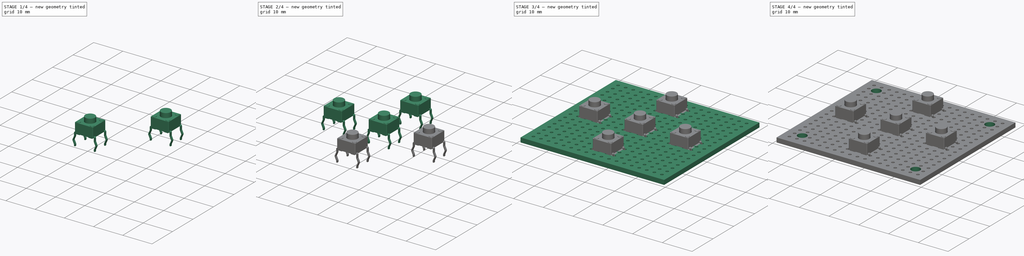
[diagram: build sequence overview — one tinted view per stage of 4, left to right]
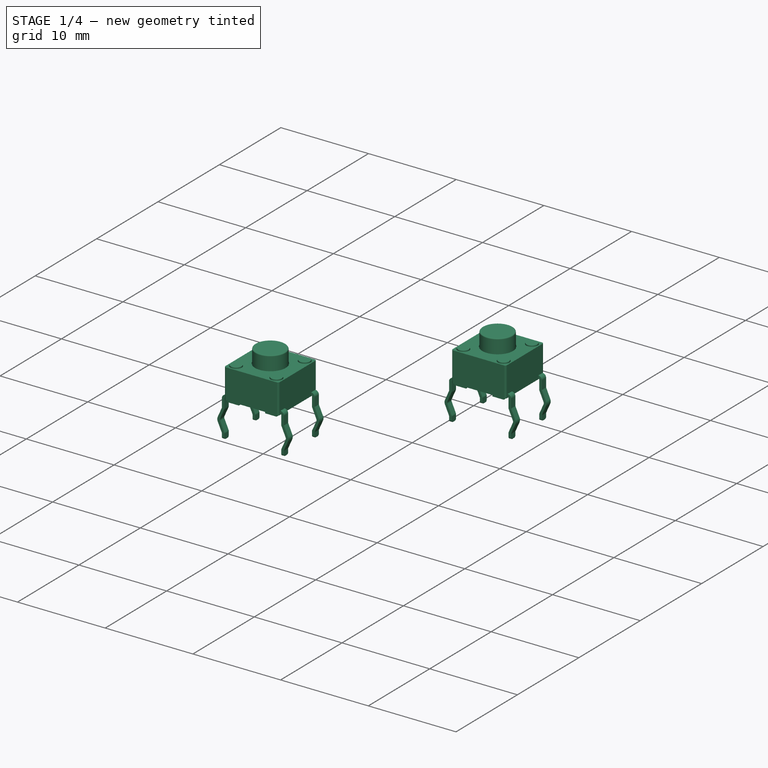
[diagram: stage 1 of 4 — iso view after this stage's code; geometry added in this stage tinted green]
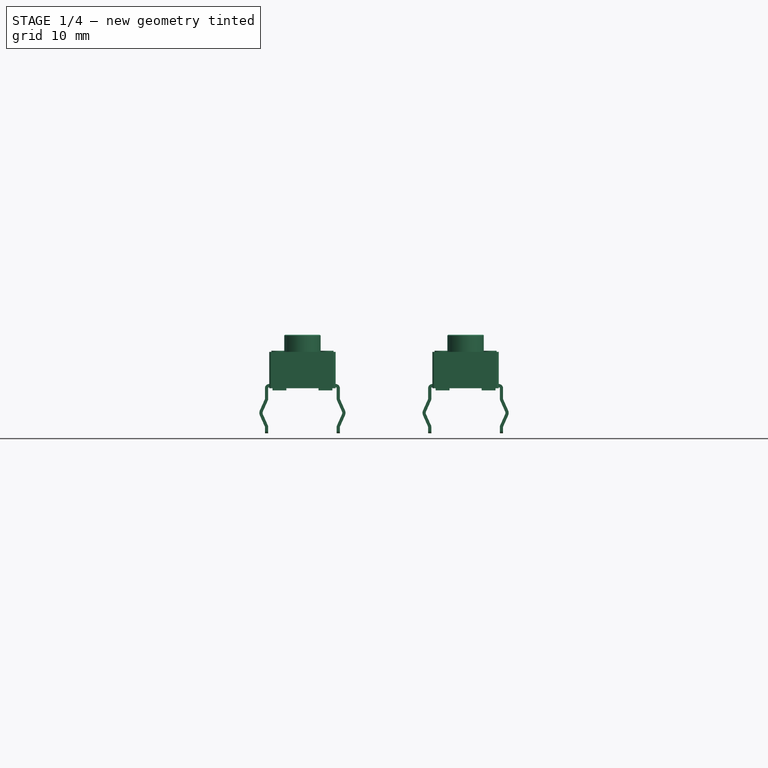
[diagram: stage 1 of 4 — front view after this stage's code; geometry added in this stage tinted green]
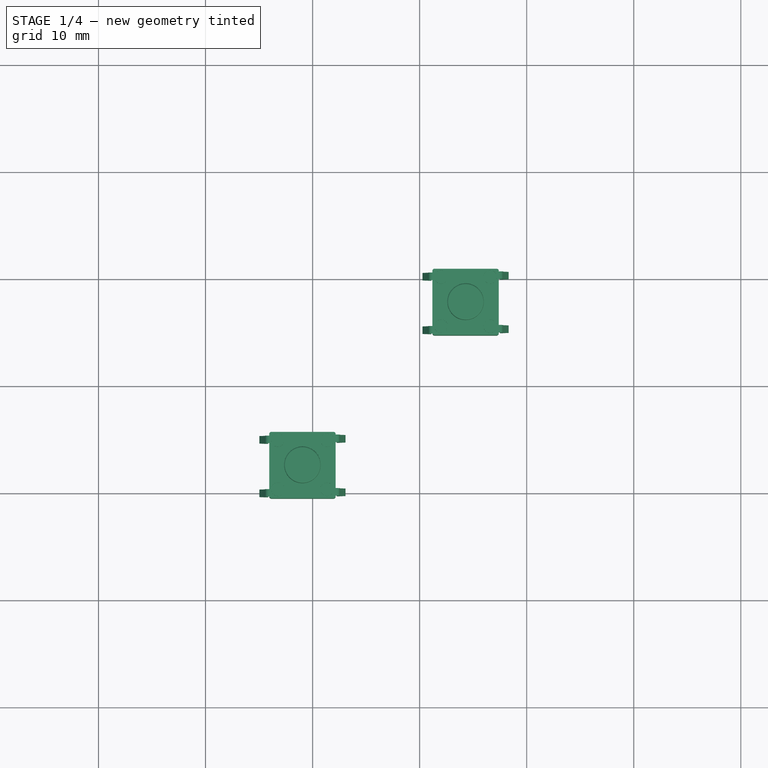
[diagram: stage 1 of 4 — top view after this stage's code; geometry added in this stage tinted green]
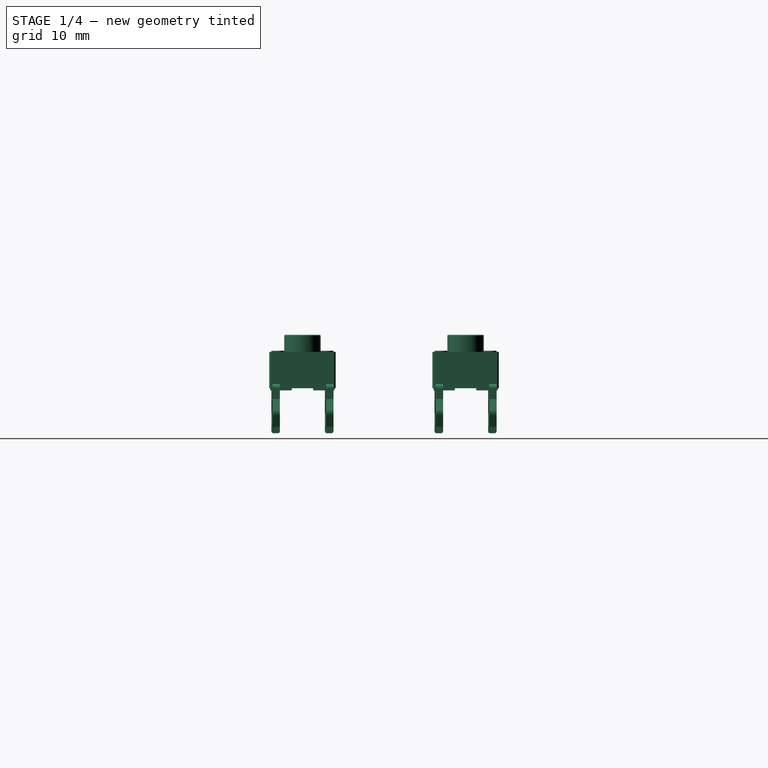
[diagram: stage 1 of 4 — right view after this stage's code; geometry added in this stage tinted green]
FCSTD DOCUMENT  (FreeCAD 0.14R3692 (Git))
Label: keypad
License: The MIT License
LicenseURL: http://opensource.org/licenses/MIT
objects: Part::Feature×14, Part::Compound×5, Sketcher::SketchObject×3, PartDesign::Pocket×2, PartDesign::LinearPattern×2, App::DocumentObjectGroup×2, PartDesign::Pad×1, PartDesign::MultiTransform×1, Part::FeaturePython×1
note: 32 computed .brp shape members not serialized (recipe doc carries the construction recipe); baked Part::Feature solids carry a one-line shape summary decoded from their .brp

FEATURE [Part::Compound] Compound003  label="pushbutton-mini-004"
  Links = -> [Part__Feature001,Part__Feature002,Part__Feature003,Part__Feature005,Part__Feature004,Part__Feature006]
  Placement = pos=(19.05,2.54,1.7) rot=(0,0,1;0rad)
FEATURE [Part::Compound] Compound004  label="pushbutton-mini-005"
  Links = -> [Part__Feature001,Part__Feature002,Part__Feature003,Part__Feature005,Part__Feature004,Part__Feature006]
  Placement = pos=(34.29,17.78,1.7) rot=(0,0,1;0rad)
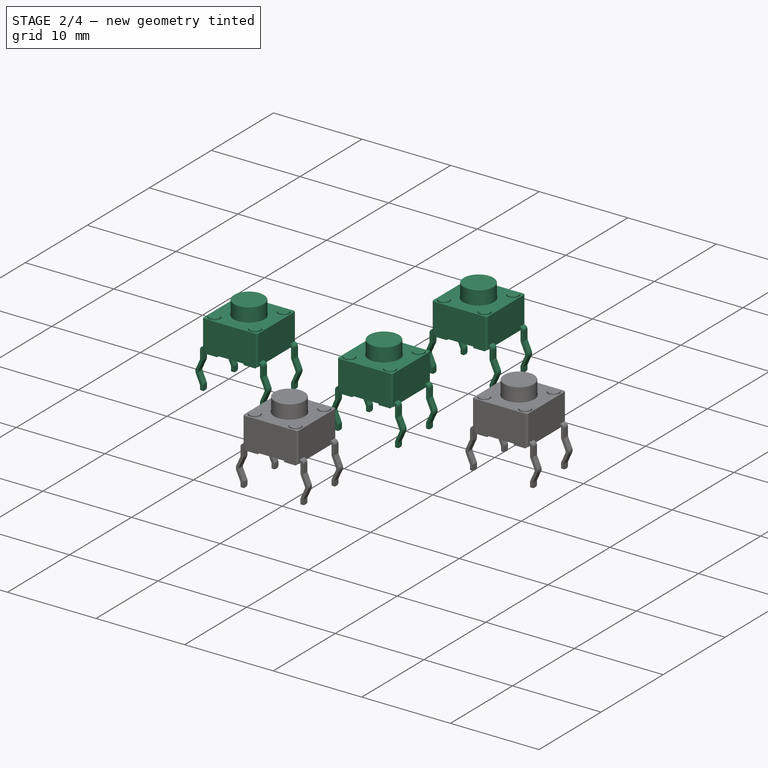
[diagram: stage 2 of 4 — iso view after this stage's code; geometry added in this stage tinted green]
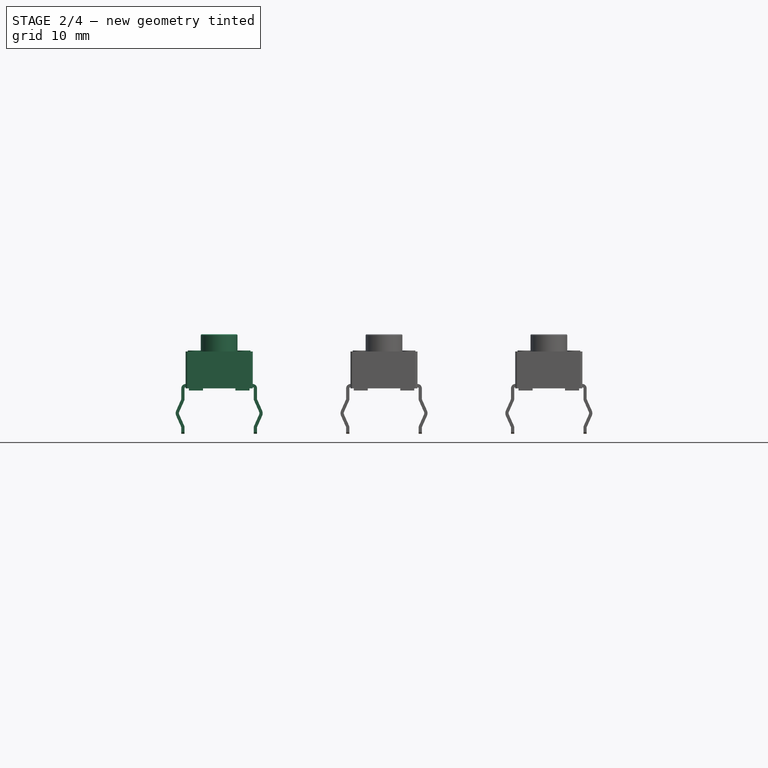
[diagram: stage 2 of 4 — front view after this stage's code; geometry added in this stage tinted green]
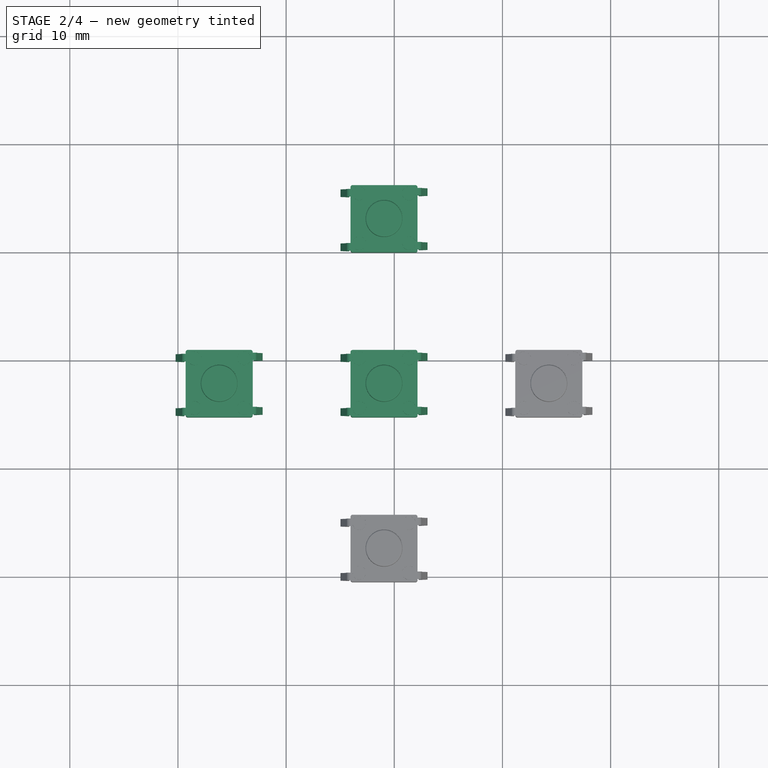
[diagram: stage 2 of 4 — top view after this stage's code; geometry added in this stage tinted green]
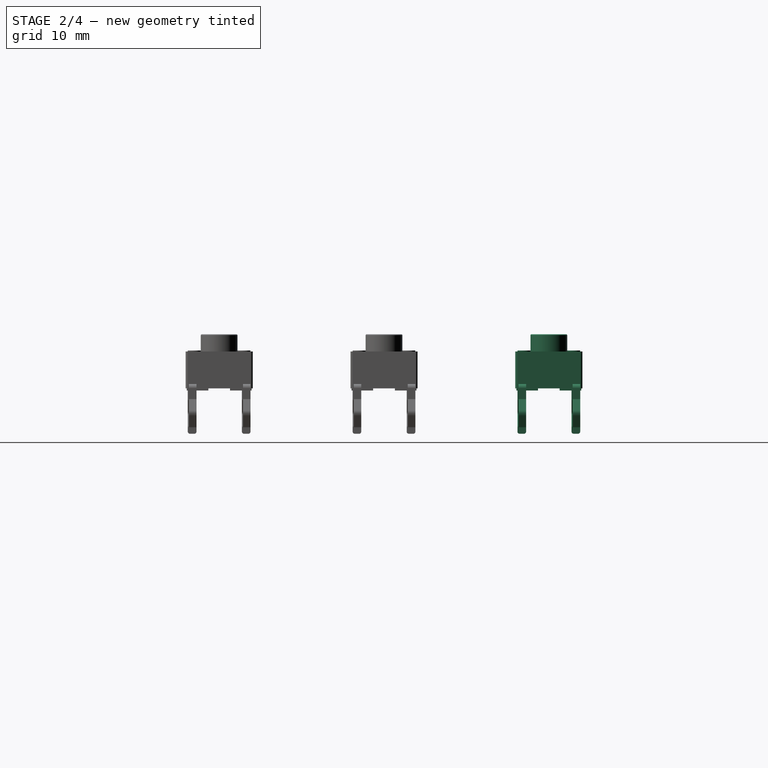
[diagram: stage 2 of 4 — right view after this stage's code; geometry added in this stage tinted green]
FEATURE [Part::Feature] Part__Feature  label="connector"
  Placement = pos=(5.08,2.54,1.5) rot=(0,0,-1;1.5708rad)
  shape: bbox 13.65 x 7.62 x 9.1 mm, 63 faces (baked)
FEATURE [Part::Feature] Part__Feature001  label="pushbutton-mini-button"
  shape: bbox 6.2 x 6.2 x 5.2 mm, 41 faces (baked)
FEATURE [Part::Feature] Part__Feature002  label="pushbutton-mini-leg-01"
  shape: bbox 0.922 x 0.7 x 4.6 mm, 20 faces (baked)
FEATURE [Part::Feature] Part__Feature003  label="pushbutton-mini-leg-02"
  shape: bbox 0.922 x 0.7 x 4.6 mm, 20 faces (baked)
FEATURE [Part::Feature] Part__Feature004  label="pushbutton-mini-leg-03"
  shape: bbox 0.922 x 0.7 x 4.6 mm, 20 faces (baked)
FEATURE [Part::Feature] Part__Feature005  label="pushbutton-mini-leg-04"
  shape: bbox 0.922 x 0.7 x 4.6 mm, 20 faces (baked)
FEATURE [Part::Feature] Part__Feature006  label="pushbutton-mini-shield"
  shape: bbox 6.2 x 6.2 x 0.2 mm, 15 faces (baked)
FEATURE [Part::Compound] Compound  label="pushbutton-mini-001"
  Links = -> [Part__Feature001,Part__Feature002,Part__Feature003,Part__Feature005,Part__Feature004,Part__Feature006]
  Placement = pos=(19.05,17.78,1.7) rot=(0,0,1;0rad)
FEATURE [Part::Compound] Compound001  label="pushbutton-mini-002"
  Links = -> [Part__Feature001,Part__Feature002,Part__Feature003,Part__Feature005,Part__Feature004,Part__Feature006]
  Placement = pos=(19.05,33.02,1.7) rot=(0,0,1;0rad)
FEATURE [Part::Compound] Compound002  label="pushbutton-mini-003"
  Links = -> [Part__Feature001,Part__Feature002,Part__Feature003,Part__Feature005,Part__Feature004,Part__Feature006]
  Placement = pos=(3.81,17.78,1.7) rot=(0,0,1;0rad)
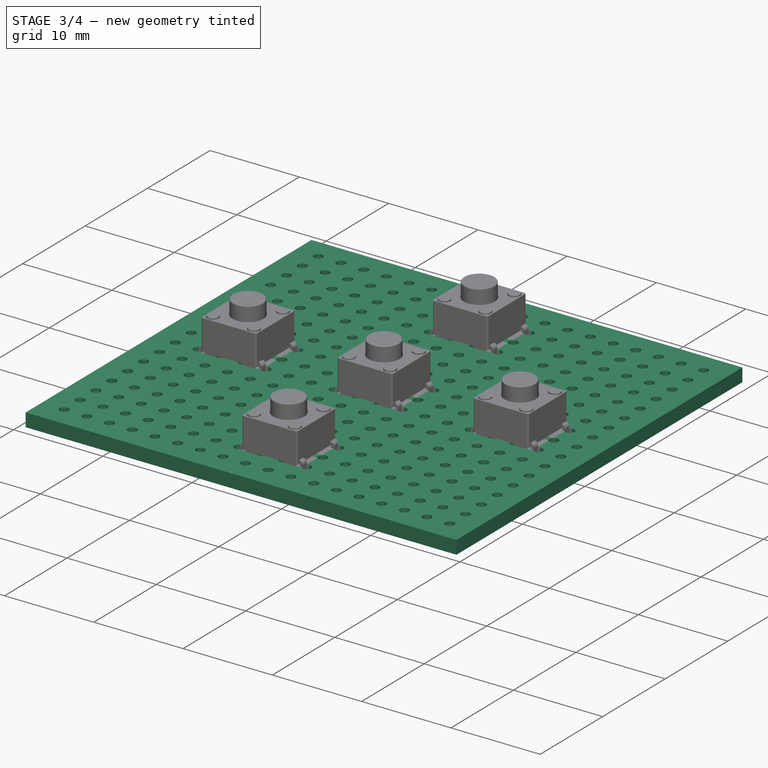
[diagram: stage 3 of 4 — iso view after this stage's code; geometry added in this stage tinted green]
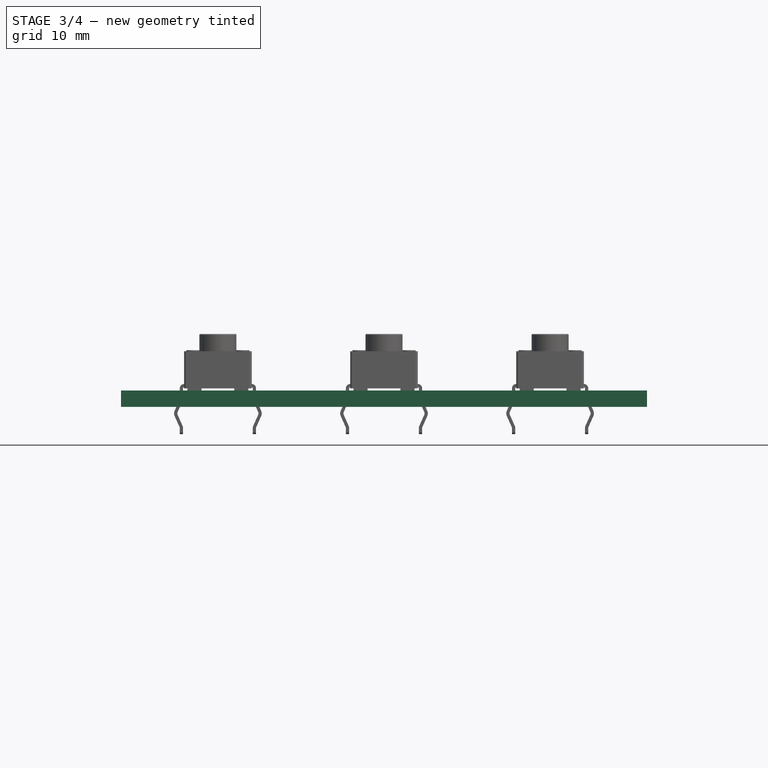
[diagram: stage 3 of 4 — front view after this stage's code; geometry added in this stage tinted green]
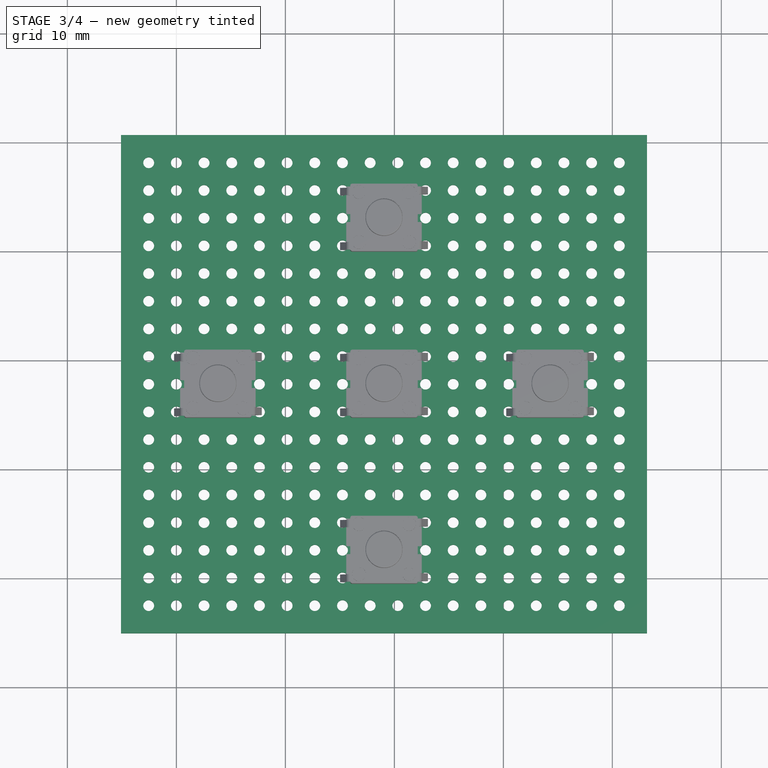
[diagram: stage 3 of 4 — top view after this stage's code; geometry added in this stage tinted green]
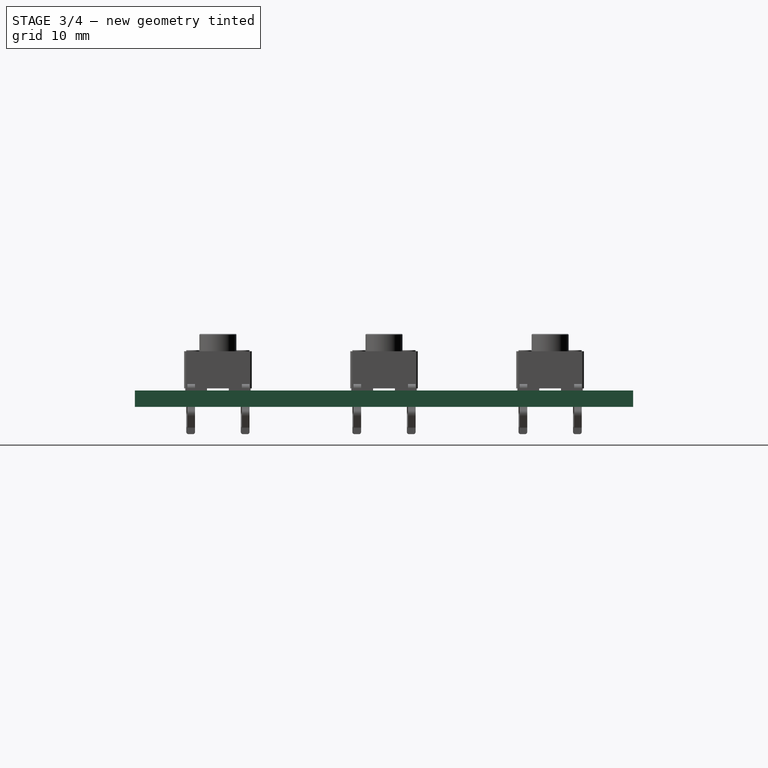
[diagram: stage 3 of 4 — right view after this stage's code; geometry added in this stage tinted green]
FEATURE [Sketcher::SketchObject] Sketch  label="keypad-sketch"
  sketch-geometry (4):
    g0: LineSegment StartX=43.18 StartY=-5.08 StartZ=0 EndX=-5.08 EndY=-5.08 EndZ=0
    g1: LineSegment StartX=-5.08 StartY=-5.08 StartZ=0 EndX=-5.08 EndY=40.64 EndZ=0
    g2: LineSegment StartX=-5.08 StartY=40.64 StartZ=0 EndX=43.18 EndY=40.64 EndZ=0
    g3: LineSegment StartX=43.18 StartY=40.64 StartZ=0 EndX=43.18 EndY=-5.08 EndZ=0
  constraints (12):
    c: Coincident(g0,g1)
    c: Coincident(g1,g2)
    c: Coincident(g2,g3)
    c: Coincident(g3,g0)
    c: Horizontal(g0)
    c: Horizontal(g2)
    c: Vertical(g1)
    c: Vertical(g3)
    c: DistanceX(g0) = -48.26
    c: DistanceY(g3) = -45.72
    c: DistanceX(g-1,g0) = -5.08
    c: DistanceY(g-1,g0) = -5.08
FEATURE [PartDesign::Pad] Pad  label="keypad-pad"
  Length = 1.5
  Length2 = 100
  Sketch = -> Sketch
  Type = 0
FEATURE [Sketcher::SketchObject] Sketch001  label="via-sketch"
  Placement = pos=(0,0,1.5) rot=(0,0,1;0rad)
  Support = -> Pad [Face6]
  sketch-geometry (1):
    g0: Circle CenterX=-2.54 CenterY=-2.54 CenterZ=0 NormalX=0 NormalY=0 NormalZ=1 Radius=0.5
  constraints (3):
    c: DistanceY(g-1,g0) = -2.54
    c: DistanceX(g-1,g0) = -2.54
    c: Radius(g0) = 0.5
FEATURE [PartDesign::Pocket] Pocket  label="via-pocket"
  Length = 5
  Sketch = -> Sketch001
  Type = 0
FEATURE [PartDesign::LinearPattern] LinearPattern  label="rows-linear-pattern"
  Direction = -> Sketch001 [H_Axis]
  Length = 43.18
  Occurrences = 18
FEATURE [PartDesign::LinearPattern] LinearPattern001  label="cols-linear-pattern"
  Direction = -> Sketch001 [V_Axis]
  Length = 40.64
  Occurrences = 17
FEATURE [PartDesign::MultiTransform] MultiTransform  label="vias-multi-transform"
  Originals = -> [Pocket]
  Transformations = -> [LinearPattern,LinearPattern001]
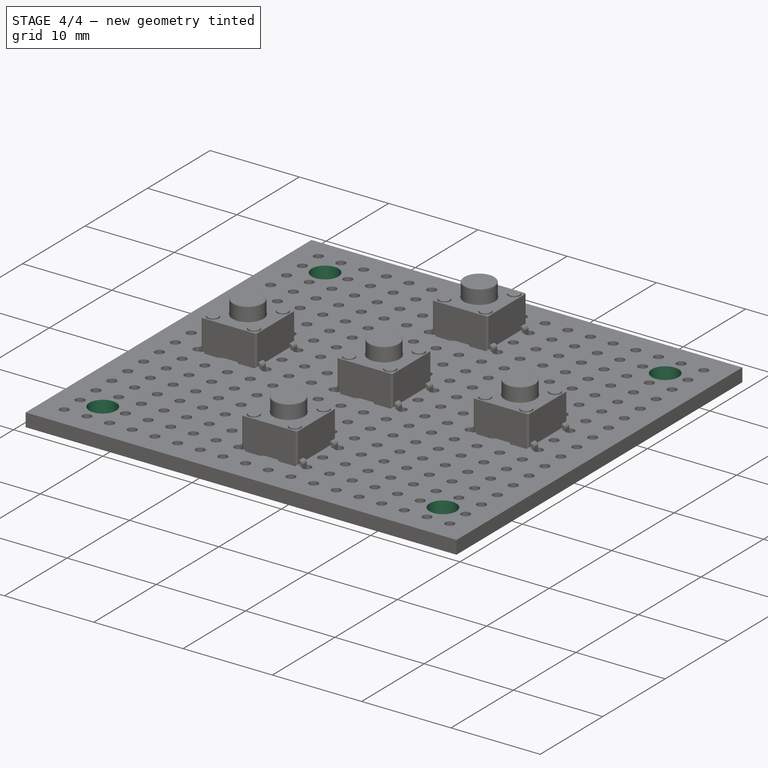
[diagram: stage 4 of 4 — iso view after this stage's code; geometry added in this stage tinted green]
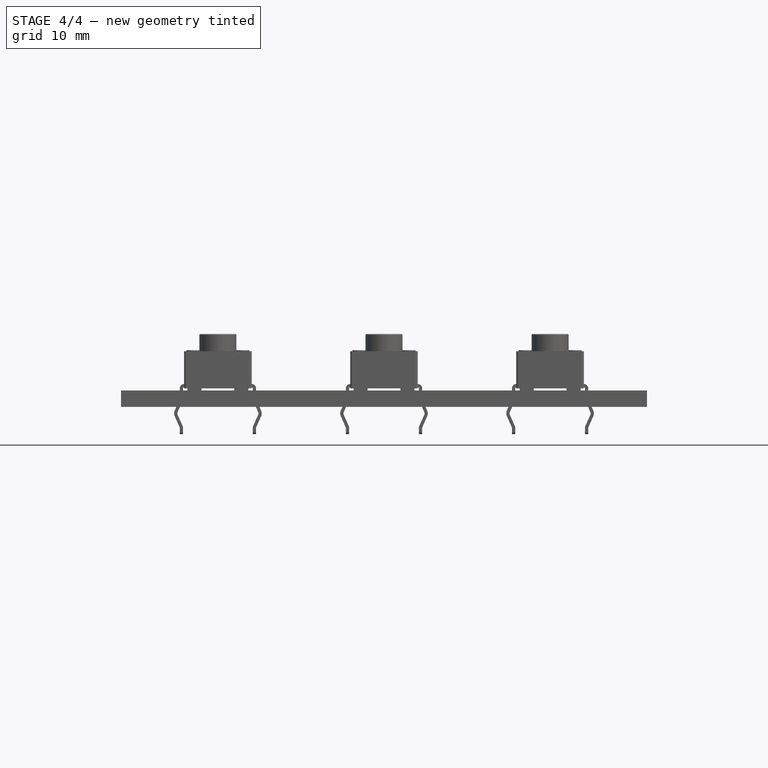
[diagram: stage 4 of 4 — front view after this stage's code; geometry added in this stage tinted green]
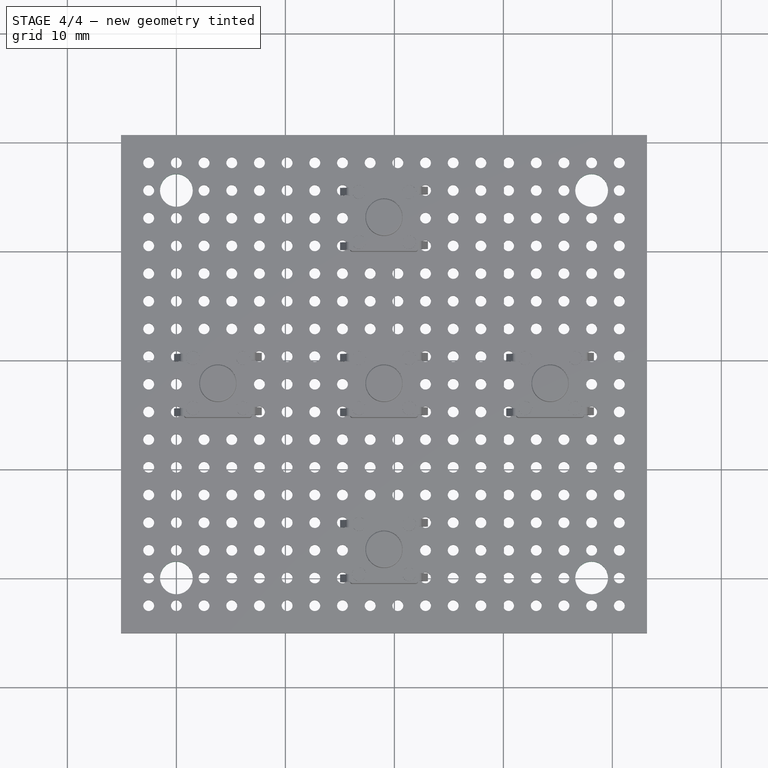
[diagram: stage 4 of 4 — top view after this stage's code; geometry added in this stage tinted green]
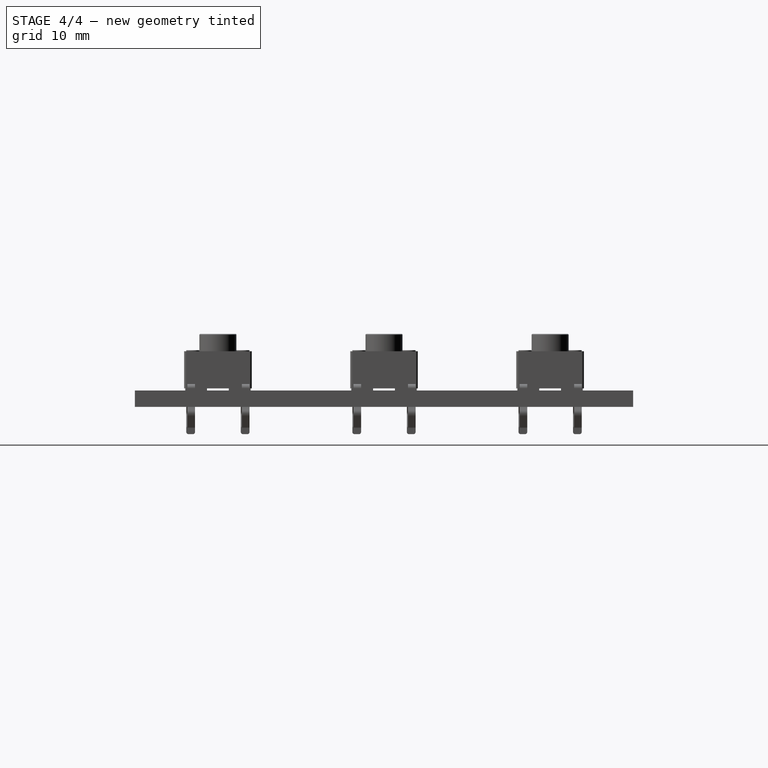
[diagram: stage 4 of 4 — right view after this stage's code; geometry added in this stage tinted green]
FEATURE [Sketcher::SketchObject] Sketch002  label="holes-sketch"
  Placement = pos=(0,0,1.5) rot=(0,0,1;0rad)
  Support = -> MultiTransform [Face5]
  sketch-geometry (8):
    g0: LineSegment [constr] StartX=0 StartY=35.56 StartZ=0 EndX=38.1 EndY=35.56 EndZ=0
    g1: LineSegment [constr] StartX=38.1 StartY=35.56 StartZ=0 EndX=38.1 EndY=0 EndZ=0
    g2: LineSegment [constr] StartX=38.1 StartY=0 StartZ=0 EndX=0 EndY=0 EndZ=0
    g3: LineSegment [constr] StartX=0 StartY=0 StartZ=0 EndX=0 EndY=35.56 EndZ=0
    g4: Circle CenterX=38.1 CenterY=35.56 CenterZ=0 NormalX=0 NormalY=0 NormalZ=1 Radius=1.5
    g5: Circle CenterX=0 CenterY=35.56 CenterZ=0 NormalX=0 NormalY=0 NormalZ=1 Radius=1.5
    g6: Circle CenterX=0 CenterY=0 CenterZ=0 NormalX=0 NormalY=0 NormalZ=1 Radius=1.5
    g7: Circle CenterX=38.1 CenterY=0 CenterZ=0 NormalX=0 NormalY=0 NormalZ=1 Radius=1.5
  constraints (20):
    c: Coincident(g0,g1)
    c: Coincident(g1,g2)
    c: Coincident(g2,g3)
    c: Coincident(g3,g0)
    c: Horizontal(g0)
    c: Horizontal(g2)
    c: Vertical(g1)
    c: Vertical(g3)
    c: PointOnObject(g1,g-1)
    c: PointOnObject(g0,g-2)
    c: DistanceX(g2) = -38.1
    c: Distance(g3) = 35.56
    c: Coincident(g4,g0)
    c: Coincident(g5,g0)
    c: Coincident(g6,g-1)
    c: Coincident(g7,g1)
    c: Equal(g6,g7)
    c: Equal(g7,g4)
    c: Equal(g4,g5)
    c: Radius(g6) = 1.5
FEATURE [PartDesign::Pocket] Pocket001  label="holes-pocket"
  Length = 5
  Sketch = -> Sketch002
  Type = 0
FEATURE [Part::FeaturePython] Clone  label="perfboard"  # Draft clone (typed FeaturePython)
  Objects = -> [Pocket001]
  Scale = (1,1,1)
FEATURE [Part::Feature] Part__Feature007  label="R4"
  Placement = pos=(-2.54,10.16,2.75) rot=(0,0,1;1.5708rad)
  shape: bbox 2.25 x 10.87 x 4.625 mm, 14 faces (baked)
FEATURE [Part::Feature] Part__Feature008  label="R5"
  Placement = pos=(40.64,10.16,2.75) rot=(0,0,1;1.5708rad)
  shape: bbox 2.25 x 10.87 x 4.625 mm, 14 faces (baked)
FEATURE [Part::Feature] Part__Feature009  label="R2"
  Placement = pos=(12.7,22.86,2.75) rot=(0,0,1;1.5708rad)
  shape: bbox 2.25 x 15.95 x 4.625 mm, 14 faces (baked)
FEATURE [Part::Feature] Part__Feature010  label="R3"
  Placement = pos=(10.16,22.86,2.75) rot=(0,0,1;1.5708rad)
  shape: bbox 2.25 x 15.95 x 4.625 mm, 14 faces (baked)
FEATURE [Part::Feature] Part__Feature011  label="R1"
  Placement = pos=(25.4,7.62,2.75) rot=(0,0,1;1.5708rad)
  shape: bbox 2.25 x 18.49 x 4.625 mm, 14 faces (baked)
FEATURE [Part::Feature] Part__Feature012  label="R6"
  Placement = pos=(27.94,7.62,2.75) rot=(0,0,-1;1.5708rad)
  shape: bbox 2.25 x 13.41 x 4.625 mm, 14 faces (baked)
FEATURE [Part::Feature] Part__Feature013  label="R7"
  Placement = pos=(33.02,5.08,2.75) rot=(0,0,1;1.5708rad)
  shape: bbox 2.25 x 10.87 x 4.625 mm, 14 faces (baked)
FEATURE [App::DocumentObjectGroup] Group001  label="resistors"
  Group = -> [Part__Feature011,Part__Feature009,Part__Feature010,Part__Feature007,Part__Feature008,Part__Feature012,Part__Feature013]
FEATURE [App::DocumentObjectGroup] Group  label="components"
  Group = -> [Part__Feature,Compound,Compound001,Compound002,Compound003,Compound004,Group001]
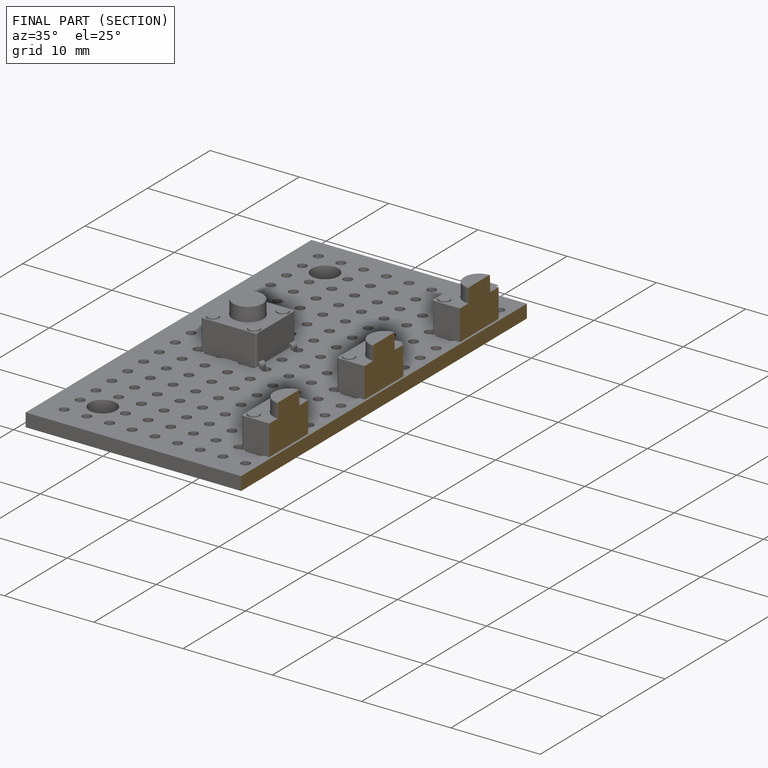
[diagram: finished part — half-section view (interior)]
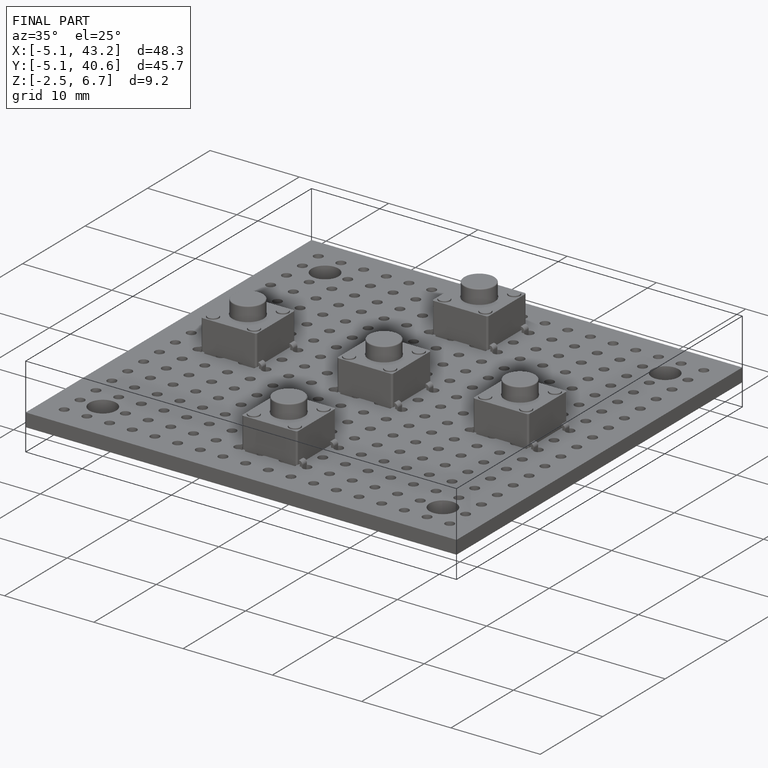
[diagram: finished part — iso view with bounding-box wireframe]
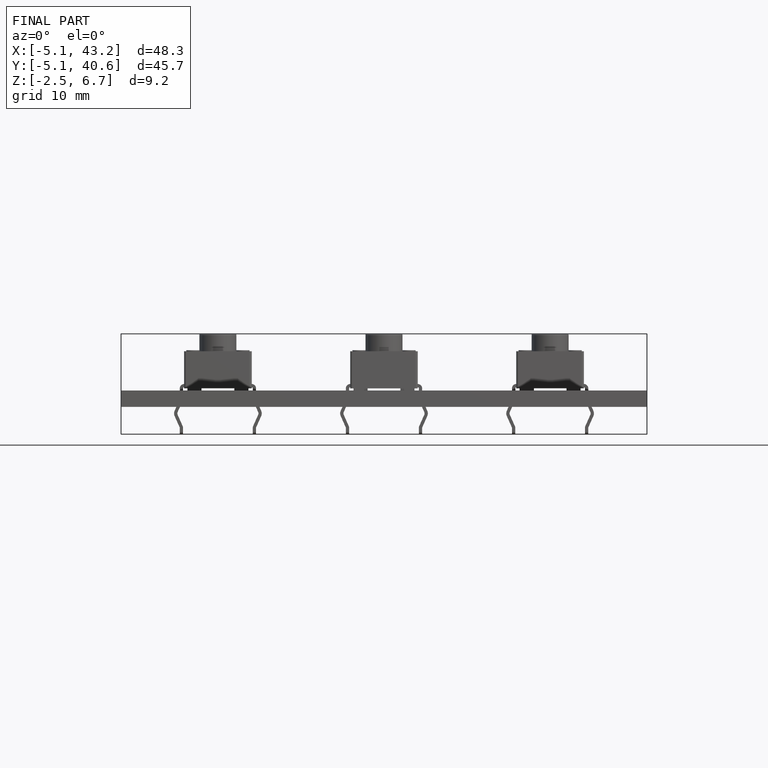
[diagram: finished part — front view with bounding-box wireframe]
